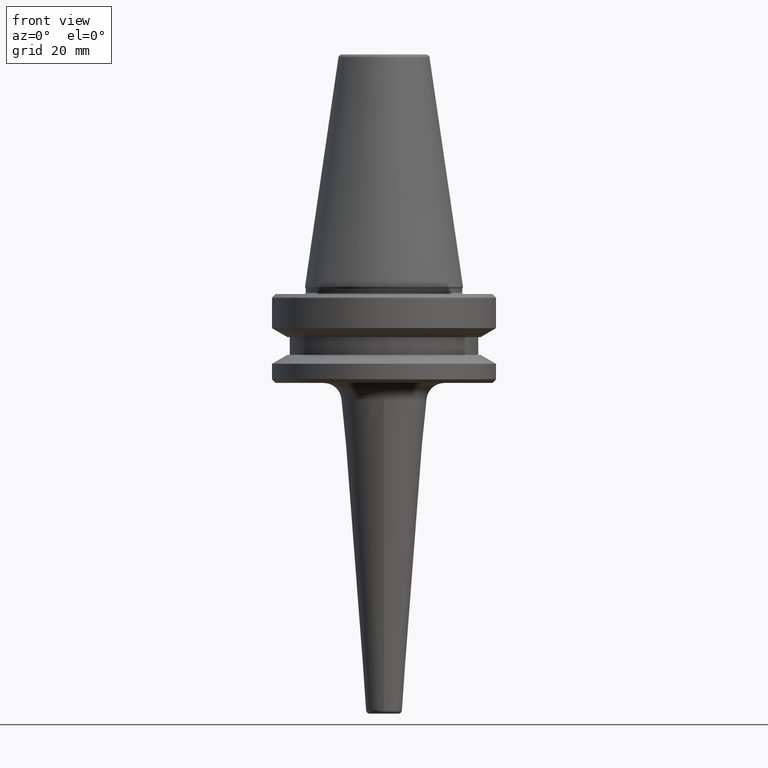
[diagram: clean part render]
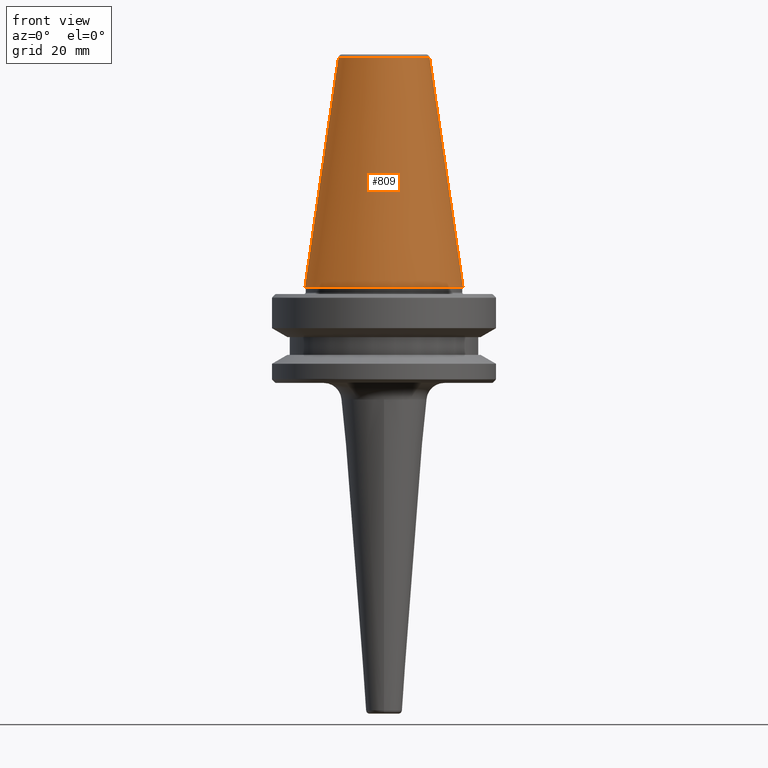
[diagram: same view with one face highlighted and labeled with its STEP entity id]
A machine part, front view. The second image highlights one B-rep face of the part: STEP entity #809.
In plain terms, the highlighted conical surface has half-angle 8.297 deg.
Its self-contained STEP definition (entity closure, byte-faithful):
#7 = EDGE_CURVE ( 'NONE', #370, #217, #451, .T. ) ;
#19 = DIRECTION ( 'NONE',  ( 1.000000000000000000, 0.0000000000000000000, 0.0000000000000000000 ) ) ;
#29 = CONICAL_SURFACE ( 'NONE', #30, 12.81219950706224800, 0.1448138465474191100 ) ;
#30 = AXIS2_PLACEMENT_3D ( 'NONE', #338, #422, #685 ) ;
#59 = FACE_OUTER_BOUND ( 'NONE', #1156, .T. ) ;
#65 = ORIENTED_EDGE ( 'NONE', *, *, #1057, .F. ) ;
#81 = CARTESIAN_POINT ( 'NONE',  ( 0.0000000000000000000, 0.0000000000000000000, 0.0000000000000000000 ) ) ;
#123 = ORIENTED_EDGE ( 'NONE', *, *, #7, .T. ) ;
#133 = DIRECTION ( 'NONE',  ( -0.0000000000000000000, -0.0000000000000000000, 1.000000000000000000 ) ) ;
#158 = CARTESIAN_POINT ( 'NONE',  ( 12.81219950706224800, 1.569041911636107800E-015, 64.54430822726730800 ) ) ;
#162 = EDGE_CURVE ( 'NONE', #304, #1158, #786, .T. ) ;
#212 = ORIENTED_EDGE ( 'NONE', *, *, #683, .T. ) ;
#217 = VERTEX_POINT ( 'NONE', #935 ) ;
#276 = CARTESIAN_POINT ( 'NONE',  ( 12.81219950706224800, 2.145409711370550300E-015, 64.54430822726730800 ) ) ;
#304 = VERTEX_POINT ( 'NONE', #738 ) ;
#338 = CARTESIAN_POINT ( 'NONE',  ( 0.0000000000000000000, 0.0000000000000000000, 64.54430822726730800 ) ) ;
#370 = VERTEX_POINT ( 'NONE', #731 ) ;
#422 = DIRECTION ( 'NONE',  ( 0.0000000000000000000, 0.0000000000000000000, -1.000000000000000000 ) ) ;
#451 = CIRCLE ( 'NONE', #903, 22.22500000000000500 ) ;
#542 = CARTESIAN_POINT ( 'NONE',  ( 0.0000000000000000000, 0.0000000000000000000, 64.54430822726730800 ) ) ;
#559 = DIRECTION ( 'NONE',  ( 1.000000000000000000, 0.0000000000000000000, 0.0000000000000000000 ) ) ;
#659 = DIRECTION ( 'NONE',  ( -0.0000000000000000000, -0.0000000000000000000, 1.000000000000000000 ) ) ;
#683 = EDGE_CURVE ( 'NONE', #304, #370, #764, .T. ) ;
#685 = DIRECTION ( 'NONE',  ( -1.000000000000000000, 0.0000000000000000000, 0.0000000000000000000 ) ) ;
#731 = CARTESIAN_POINT ( 'NONE',  ( -22.22500000000000500, 2.721777511104993200E-015, 0.0000000000000000000 ) ) ;
#738 = CARTESIAN_POINT ( 'NONE',  ( -12.81219950706224800, 0.0000000000000000000, 64.54430822726730800 ) ) ;
#740 = AXIS2_PLACEMENT_3D ( 'NONE', #542, #659, #559 ) ;
#753 = DIRECTION ( 'NONE',  ( -0.1443082272673071000, 0.0000000000000000000, -0.9895327864921743500 ) ) ;
#764 = LINE ( 'NONE', #1004, #884 ) ;
#786 = CIRCLE ( 'NONE', #740, 12.81219950706224800 ) ;
#805 = DIRECTION ( 'NONE',  ( 0.1443082272673071000, 1.767266086135364600E-017, -0.9895327864921743500 ) ) ;
#809 = ADVANCED_FACE ( 'NONE', ( #59 ), #29, .T. ) ;
#884 = VECTOR ( 'NONE', #753, 1000.000000000000000 ) ;
#903 = AXIS2_PLACEMENT_3D ( 'NONE', #81, #133, #19 ) ;
#935 = CARTESIAN_POINT ( 'NONE',  ( 22.22500000000000500, 0.0000000000000000000, 0.0000000000000000000 ) ) ;
#965 = VECTOR ( 'NONE', #805, 1000.000000000000000 ) ;
#1004 = CARTESIAN_POINT ( 'NONE',  ( -12.81219950706224800, 0.0000000000000000000, 64.54430822726730800 ) ) ;
#1020 = LINE ( 'NONE', #158, #965 ) ;
#1057 = EDGE_CURVE ( 'NONE', #1158, #217, #1020, .T. ) ;
#1156 = EDGE_LOOP ( 'NONE', ( #65, #1164, #212, #123 ) ) ;
#1158 = VERTEX_POINT ( 'NONE', #276 ) ;
#1164 = ORIENTED_EDGE ( 'NONE', *, *, #162, .F. ) ;